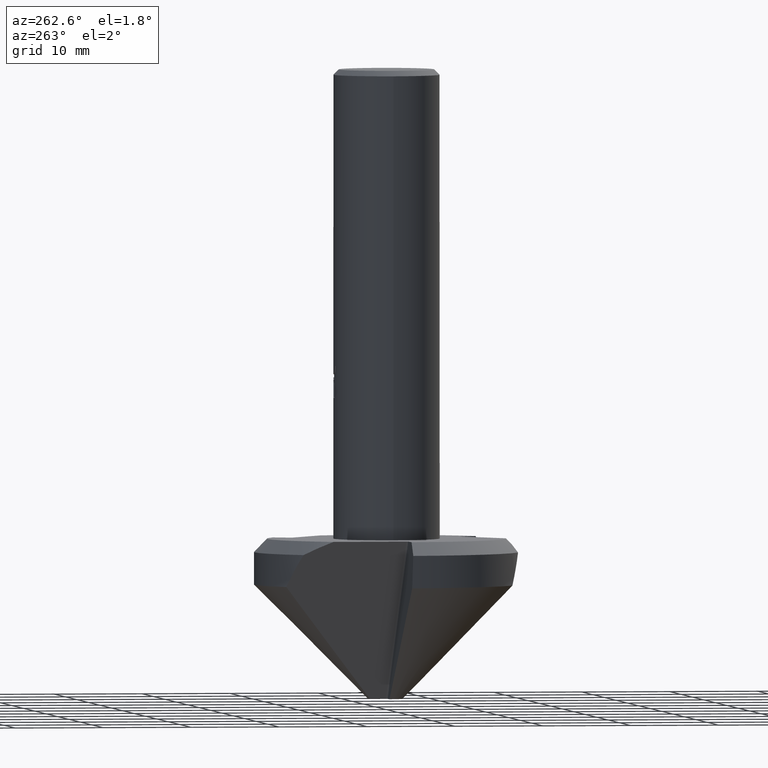
[diagram: clean part render]
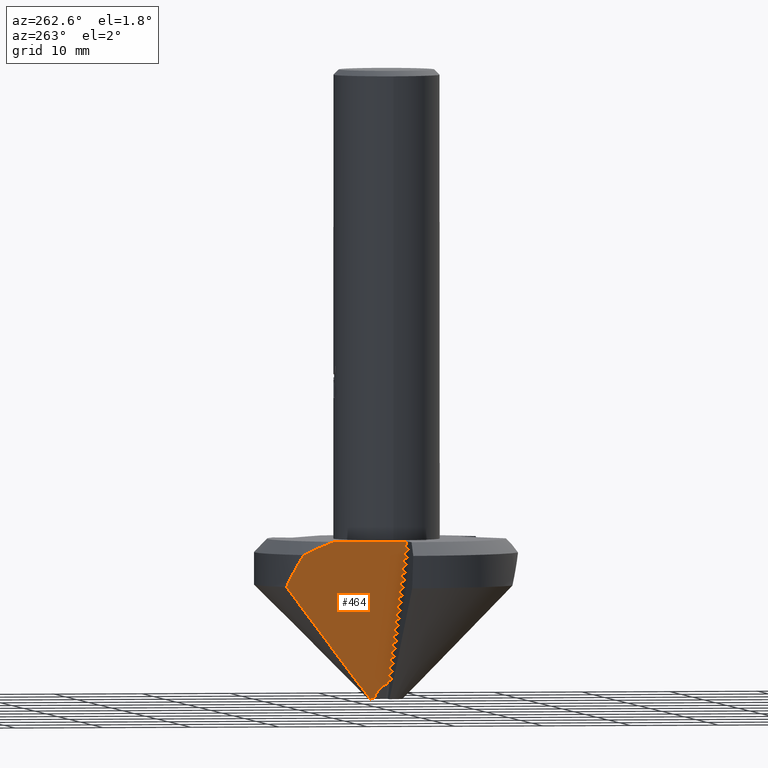
[diagram: same view with one face highlighted and labeled with its STEP entity id]
A machine part, auxiliary view. The second image highlights one B-rep face of the part: STEP entity #464.
In plain terms, the highlighted planar face has unit normal (0.8661, 0.0127, 0.4997).
Its self-contained STEP definition (entity closure, byte-faithful):
#442=VERTEX_POINT('',#1204);
#464=ADVANCED_FACE('',(#1230),#1231,.F.);
#478=VERTEX_POINT('',#1246);
#492=VERTEX_POINT('',#1260);
#494=EDGE_CURVE('',#1130,#552,#1262,.T.);
#512=VERTEX_POINT('',#1281);
#552=VERTEX_POINT('',#1323);
#574=VERTEX_POINT('',#1348);
#614=EDGE_CURVE('',#750,#574,#1393,.T.);
#750=VERTEX_POINT('',#1539);
#754=EDGE_CURVE('',#492,#750,#1543,.T.);
#804=VERTEX_POINT('',#1596);
#838=EDGE_CURVE('',#804,#492,#1634,.T.);
#1018=EDGE_CURVE('',#552,#478,#1833,.T.);
#1022=EDGE_CURVE('',#478,#512,#1838,.T.);
#1064=EDGE_CURVE('',#574,#442,#1884,.T.);
#1078=EDGE_CURVE('',#512,#804,#1898,.T.);
#1112=EDGE_CURVE('',#1130,#442,#1934,.T.);
#1130=VERTEX_POINT('',#1952);
#1204=CARTESIAN_POINT('',(-11.1133598937988,-0.809244939809423,-52.94));
#1230=FACE_OUTER_BOUND('',#2080,.T.);
#1231=PLANE('',#2081);
#1246=CARTESIAN_POINT('',(-0.734545061951539,1.96200625686123,-71.0));
#1260=CARTESIAN_POINT('',(-10.4184870026836,10.7914377436426,-54.44));
#1262=ELLIPSE('',#2153,3.36206036815254,1.68);
#1281=CARTESIAN_POINT('',(-0.734623106566583,1.96731514793601,-71.0));
#1323=CARTESIAN_POINT('',(-0.733689110485275,1.51132401858614,-70.99));
#1348=CARTESIAN_POINT('',(-11.2352846887964,7.48454260203632,-52.94));
#1393=(B_SPLINE_CURVE(2,(#2410,#2411,#2412),.UNSPECIFIED.,.F.,.F.)B_SPLINE_CURVE_WITH_KNOTS((3,3),(0.0,0.0284474352952362),.UNSPECIFIED.)RATIONAL_B_SPLINE_CURVE((1.0,1.00000014215376,1.0))BOUNDED_CURVE()REPRESENTATION_ITEM('')GEOMETRIC_REPRESENTATION_ITEM()CURVE());
#1539=CARTESIAN_POINT('',(-11.2298986970263,7.51062415878517,-52.95));
#1543=(B_SPLINE_CURVE(2,(#2783,#2784,#2785),.UNSPECIFIED.,.F.,.F.)B_SPLINE_CURVE_WITH_KNOTS((3,3),(0.0,3.69533647640902),.UNSPECIFIED.)RATIONAL_B_SPLINE_CURVE((1.0,1.00214348491909,1.0))BOUNDED_CURVE()REPRESENTATION_ITEM('')GEOMETRIC_REPRESENTATION_ITEM()CURVE());
#1596=CARTESIAN_POINT('',(-8.33160824033915,12.4733437429389,-58.1));
#1634=ELLIPSE('',#2982,30.0183961442191,15.0);
#1833=(B_SPLINE_CURVE(2,(#3460,#3461,#3462),.UNSPECIFIED.,.F.,.F.)B_SPLINE_CURVE_WITH_KNOTS((3,3),(0.0,5.76225528564948),.UNSPECIFIED.)RATIONAL_B_SPLINE_CURVE((1.0,4.04549467610416,1.0))BOUNDED_CURVE()REPRESENTATION_ITEM('')GEOMETRIC_REPRESENTATION_ITEM()CURVE());
#1838=LINE('',#3474,#3475);
#1884=LINE('',#3551,#3552);
#1898=(B_SPLINE_CURVE(2,(#3613,#3614,#3615),.UNSPECIFIED.,.F.,.F.)B_SPLINE_CURVE_WITH_KNOTS((3,3),(0.0,18.2894669321312),.UNSPECIFIED.)RATIONAL_B_SPLINE_CURVE((1.0,1.44768983521034,1.0))BOUNDED_CURVE()REPRESENTATION_ITEM('')GEOMETRIC_REPRESENTATION_ITEM()CURVE());
#1934=LINE('',#3752,#3753);
#1952=CARTESIAN_POINT('',(-1.67744896998687,0.0925470317729412,-69.3180492363795));
#2080=EDGE_LOOP('',(#3926,#3927,#3928,#3929,#3930,#3931,#3932,#3933,#3934));
#2081=AXIS2_PLACEMENT_3D('',#3935,#3936,#3937);
#2153=AXIS2_PLACEMENT_3D('',#3959,#3960,#3961);
#2410=CARTESIAN_POINT('',(-11.2298986970263,7.51062415878516,-52.95));
#2411=CARTESIAN_POINT('',(-11.2325965542826,7.49758113166173,-52.9449915165855));
#2412=CARTESIAN_POINT('',(-11.2352846887964,7.48454260203632,-52.94));
#2783=CARTESIAN_POINT('',(-10.4184870026836,10.7914377436425,-54.44));
#2784=CARTESIAN_POINT('',(-10.8990489724435,9.1101461206656,-53.5642116505109));
#2785=CARTESIAN_POINT('',(-11.2298986970263,7.51062415878513,-52.95));
#2982=AXIS2_PLACEMENT_3D('',#4348,#4349,#4350);
#3460=CARTESIAN_POINT('',(-0.651148006850471,-2.8903384357503,-71.0209102991126));
#3461=CARTESIAN_POINT('',(-0.732285556359086,-0.010765137868395,-70.9536491778741));
#3462=CARTESIAN_POINT('',(-0.735828479301259,2.86994885826387,-71.0209102991126));
#3474=CARTESIAN_POINT('',(-1.14639189281624,29.9773916019137,-71.0));
#3475=VECTOR('',#4599,1.0);
#3551=CARTESIAN_POINT('',(-11.5642882291003,29.8646127415768,-52.94));
#3552=VECTOR('',#4647,1.0);
#3613=CARTESIAN_POINT('',(-0.734623106566589,1.967315147936,-71.0));
#3614=CARTESIAN_POINT('',(-1.76660643287302,3.45095925996712,-69.2490884129328));
#3615=CARTESIAN_POINT('',(-8.33160824033915,12.4733437429389,-58.1));
#3752=CARTESIAN_POINT('',(-0.532363886591068,0.201983051604283,-71.3055902408598));
#3753=VECTOR('',#4677,1.0);
#3926=ORIENTED_EDGE('',*,*,#494,.F.);
#3927=ORIENTED_EDGE('',*,*,#1112,.T.);
#3928=ORIENTED_EDGE('',*,*,#1064,.F.);
#3929=ORIENTED_EDGE('',*,*,#614,.F.);
#3930=ORIENTED_EDGE('',*,*,#754,.F.);
#3931=ORIENTED_EDGE('',*,*,#838,.F.);
#3932=ORIENTED_EDGE('',*,*,#1078,.F.);
#3933=ORIENTED_EDGE('',*,*,#1022,.F.);
#3934=ORIENTED_EDGE('',*,*,#1018,.F.);
#3935=CARTESIAN_POINT('',(-2.6150226177935,59.9192112580101,-69.2173846068582));
#3936=DIRECTION('',(0.866108656975694,0.012732436165577,0.499693585491199));
#3937=DIRECTION('',(-0.034832887576599,0.99878269316782,0.0349256606453247));
#3959=CARTESIAN_POINT('',(0.0,0.0,-72.2231790349524));
#3960=DIRECTION('',(-0.866108656975694,-0.012732436165577,-0.499693585491199));
#3961=DIRECTION('',(-0.499639599429125,-0.00734507068401734,0.866202240021896));
#4348=CARTESIAN_POINT('',(0.0,0.0,-72.2231790349524));
#4349=DIRECTION('',(0.866108656975694,0.012732436165577,0.499693585491199));
#4350=DIRECTION('',(-0.499639599429125,-0.00734507068401734,0.866202240021896));
#4599=DIRECTION('',(-0.0146991494333415,0.999891961666827,0.0));
#4647=DIRECTION('',(0.0146991494333415,-0.999891961666827,0.0));
#4677=DIRECTION('',(-0.498640616330876,-0.0476551875216736,0.865497844507679));